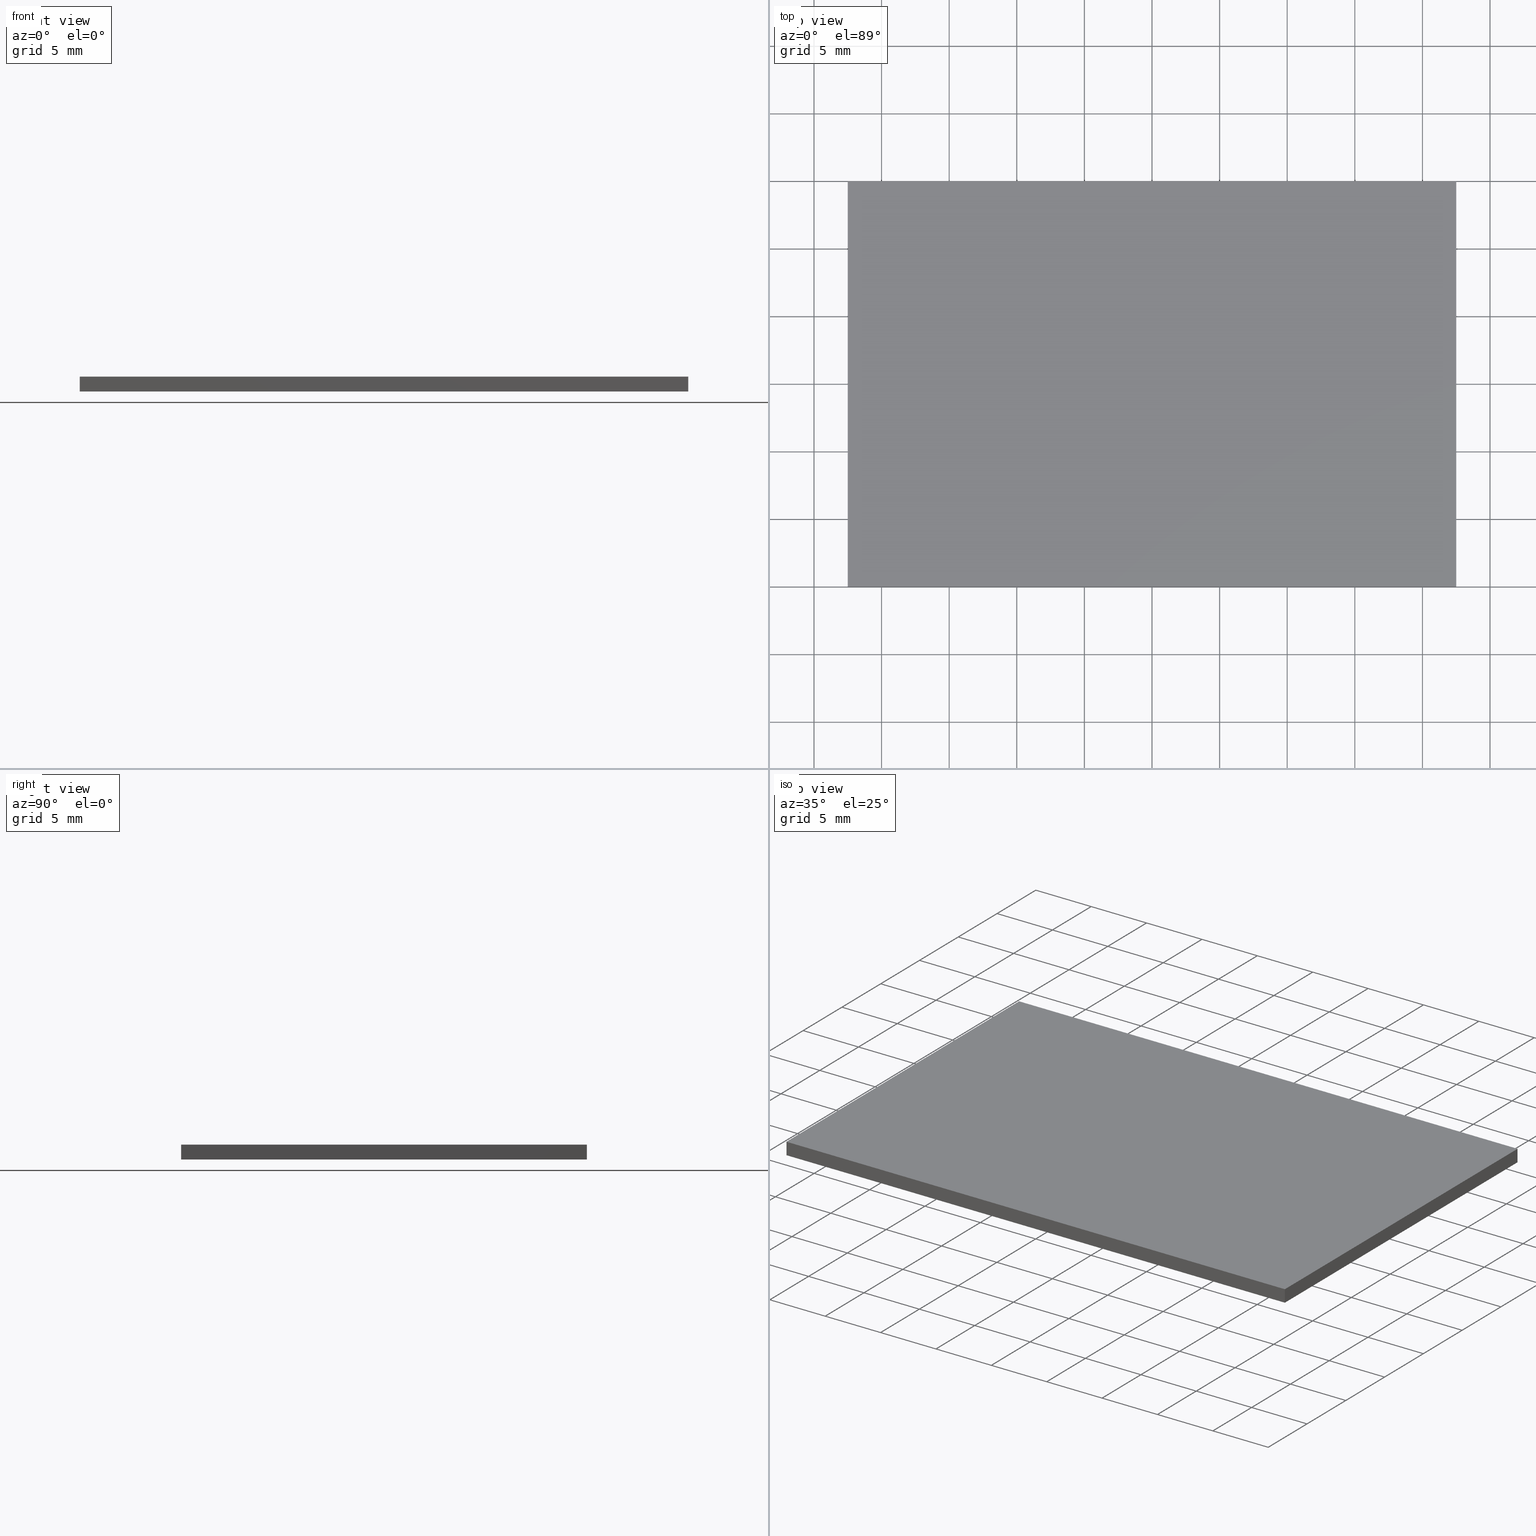
[diagram: canonical four-view strip — front | top / right | iso, engineering-drawing reading convention]
A machine part, canonical four-view strip (front | top / right | iso — engineering-drawing reading convention). The complete STEP part file that produces these views, byte-faithful:
ISO-10303-21;
HEADER;
FILE_DESCRIPTION (( 'STEP AP203' ),
    '1' );
FILE_NAME ('348507.STEP',
    '2019-07-31T07:42:48',
    ( '' ),
    ( '' ),
    'SwSTEP 2.0',
    'SolidWorks 2016',
    '' );
FILE_SCHEMA (( 'CONFIG_CONTROL_DESIGN' ));
ENDSEC;

DATA;
#1 = SECURITY_CLASSIFICATION_LEVEL ( 'unclassified' ) ;
#2 = ORGANIZATION ( 'δָ��', 'δָ��', '' ) ;
#3 = CLOSED_SHELL ( 'NONE', ( #141, #264, #4, #267, #297, #73 ) ) ;
#4 = ADVANCED_FACE ( 'NONE', ( #225 ), #79, .F. ) ;
#5 = LOCAL_TIME ( 15, 42, 48.00000000000000000, #269 ) ;
#6 = DESIGN_CONTEXT ( 'detailed design', #213, 'design' ) ;
#7 = PRODUCT_RELATED_PRODUCT_CATEGORY ( 'detail', '', ( #286 ) ) ;
#8 = SECURITY_CLASSIFICATION ( '', '', #1 ) ;
#9 = LOCAL_TIME ( 15, 42, 48.00000000000000000, #70 ) ;
#10 = EDGE_CURVE ( 'NONE', #270, #159, #53, .T. ) ;
#11 = EDGE_LOOP ( 'NONE', ( #221, #121, #105, #145 ) ) ;
#12 = DIRECTION ( 'NONE',  ( 0.0000000000000000000, 0.0000000000000000000, -1.000000000000000000 ) ) ;
#13 = LINE ( 'NONE', #202, #164 ) ;
#14 = DIRECTION ( 'NONE',  ( -1.000000000000000000, -0.0000000000000000000, -0.0000000000000000000 ) ) ;
#15 = EDGE_CURVE ( 'NONE', #88, #270, #190, .T. ) ;
#16 = ORIENTED_EDGE ( 'NONE', *, *, #15, .F. ) ;
#17 = DIRECTION ( 'NONE',  ( 0.0000000000000000000, -1.000000000000000000, 0.0000000000000000000 ) ) ;
#18 = CC_DESIGN_PERSON_AND_ORGANIZATION_ASSIGNMENT ( #31, #68, ( #182 ) ) ;
#19 = CARTESIAN_POINT ( 'NONE',  ( 22.50000000000000000, -15.00000000000000000, 1.100000000000000100 ) ) ;
#20 = AXIS2_PLACEMENT_3D ( 'NONE', #232, #281, #251 ) ;
#21 = DIRECTION ( 'NONE',  ( -1.000000000000000000, -0.0000000000000000000, -0.0000000000000000000 ) ) ;
#22 = APPROVAL_DATE_TIME ( #143, #169 ) ;
#23 = DATE_TIME_ROLE ( 'creation_date' ) ;
#24 = APPROVAL_ROLE ( '' ) ;
#25 = DIRECTION ( 'NONE',  ( 0.0000000000000000000, 0.0000000000000000000, 1.000000000000000000 ) ) ;
#26 = SECURITY_CLASSIFICATION_LEVEL ( 'unclassified' ) ;
#27 = VERTEX_POINT ( 'NONE', #106 ) ;
#28 = APPLICATION_CONTEXT ( 'configuration controlled 3d designs of mechanical parts and assemblies' ) ;
#29 = VECTOR ( 'NONE', #83, 1000.000000000000000 ) ;
#30 = PRODUCT_DEFINITION ( 'δ֪', '', #268, #250 ) ;
#31 = PERSON_AND_ORGANIZATION ( #288, #2 ) ;
#32 = CALENDAR_DATE ( 2019, 31, 7 ) ;
#33 = DATE_AND_TIME ( #254, #56 ) ;
#34 = EDGE_CURVE ( 'NONE', #154, #270, #274, .T. ) ;
#35 = ORIENTED_EDGE ( 'NONE', *, *, #263, .F. ) ;
#36 = DIRECTION ( 'NONE',  ( -0.0000000000000000000, -0.0000000000000000000, -1.000000000000000000 ) ) ;
#37 = LINE ( 'NONE', #114, #292 ) ;
#38 = CC_DESIGN_PERSON_AND_ORGANIZATION_ASSIGNMENT ( #228, #95, ( #222 ) ) ;
#39 =( NAMED_UNIT ( * ) PLANE_ANGLE_UNIT ( ) SI_UNIT ( $, .RADIAN. ) );
#40 = AXIS2_PLACEMENT_3D ( 'NONE', #54, #150, #107 ) ;
#41 = PLANE ( 'NONE',  #304 ) ;
#42 = APPROVAL_PERSON_ORGANIZATION ( #220, #197, #140 ) ;
#43 = CARTESIAN_POINT ( 'NONE',  ( -22.49999999999999600, 15.00000000000000000, 1.100000000000000100 ) ) ;
#44 = CARTESIAN_POINT ( 'NONE',  ( -22.49999999999999600, 15.00000000000000000, 1.100000000000000100 ) ) ;
#45 = CC_DESIGN_DATE_AND_TIME_ASSIGNMENT ( #146, #69, ( #30 ) ) ;
#46 = APPROVAL_ROLE ( '' ) ;
#47 = APPROVAL_ROLE ( '' ) ;
#48 = LOCAL_TIME ( 15, 42, 48.00000000000000000, #198 ) ;
#49 = APPLICATION_CONTEXT ( 'configuration controlled 3d designs of mechanical parts and assemblies' ) ;
#50 = ORIENTED_EDGE ( 'NONE', *, *, #208, .T. ) ;
#51 = DATE_AND_TIME ( #32, #100 ) ;
#52 = APPROVAL_PERSON_ORGANIZATION ( #242, #223, #24 ) ;
#53 = LINE ( 'NONE', #278, #29 ) ;
#54 = CARTESIAN_POINT ( 'NONE',  ( 22.50000000000000000, -15.00000000000000000, 1.100000000000000100 ) ) ;
#55 = CC_DESIGN_APPROVAL ( #135, ( #268 ) ) ;
#56 = LOCAL_TIME ( 15, 42, 48.00000000000000000, #211 ) ;
#57 = LINE ( 'NONE', #177, #295 ) ;
#58 = EDGE_CURVE ( 'NONE', #27, #159, #200, .T. ) ;
#59 = PERSON_AND_ORGANIZATION ( #288, #2 ) ;
#60 =( NAMED_UNIT ( * ) SI_UNIT ( $, .STERADIAN. ) SOLID_ANGLE_UNIT ( ) );
#61 = SHAPE_DEFINITION_REPRESENTATION ( #214, #259 ) ;
#62 = ORIENTED_EDGE ( 'NONE', *, *, #97, .F. ) ;
#63 = DIRECTION ( 'NONE',  ( 0.0000000000000000000, -0.0000000000000000000, -1.000000000000000000 ) ) ;
#64 = AXIS2_PLACEMENT_3D ( 'NONE', #305, #12, #276 ) ;
#65 = LOCAL_TIME ( 15, 42, 48.00000000000000000, #273 ) ;
#66 = VECTOR ( 'NONE', #203, 1000.000000000000000 ) ;
#67 = APPROVAL_ROLE ( '' ) ;
#68 = PERSON_AND_ORGANIZATION_ROLE ( 'design_owner' ) ;
#69 = DATE_TIME_ROLE ( 'creation_date' ) ;
#70 = COORDINATED_UNIVERSAL_TIME_OFFSET ( 8, 0, .AHEAD. ) ;
#71 = FACE_OUTER_BOUND ( 'NONE', #74, .T. ) ;
#72 = PERSON_AND_ORGANIZATION_ROLE ( 'design_owner' ) ;
#73 = ADVANCED_FACE ( 'NONE', ( #71 ), #86, .T. ) ;
#74 = EDGE_LOOP ( 'NONE', ( #217, #62, #239, #16 ) ) ;
#75 = SECURITY_CLASSIFICATION ( '', '', #26 ) ;
#76 = AXIS2_PLACEMENT_3D ( 'NONE', #128, #25, #116 ) ;
#77 = DATE_AND_TIME ( #138, #48 ) ;
#78 = ORIENTED_EDGE ( 'NONE', *, *, #144, .T. ) ;
#79 = PLANE ( 'NONE',  #187 ) ;
#80 = CC_DESIGN_PERSON_AND_ORGANIZATION_ASSIGNMENT ( #302, #72, ( #286 ) ) ;
#81 = DATE_AND_TIME ( #120, #284 ) ;
#82 = APPROVAL_PERSON_ORGANIZATION ( #224, #218, #46 ) ;
#83 = DIRECTION ( 'NONE',  ( -0.0000000000000000000, -1.000000000000000000, -0.0000000000000000000 ) ) ;
#84 = VECTOR ( 'NONE', #306, 1000.000000000000000 ) ;
#85 = CARTESIAN_POINT ( 'NONE',  ( -22.49999999999999600, 15.00000000000000000, 0.0000000000000000000 ) ) ;
#86 = PLANE ( 'NONE',  #64 ) ;
#87 = APPROVAL_PERSON_ORGANIZATION ( #163, #135, #118 ) ;
#88 = VERTEX_POINT ( 'NONE', #271 ) ;
#89 = CC_DESIGN_DATE_AND_TIME_ASSIGNMENT ( #51, #260, ( #8 ) ) ;
#90 = DIRECTION ( 'NONE',  ( -0.0000000000000000000, -1.000000000000000000, -0.0000000000000000000 ) ) ;
#91 = CALENDAR_DATE ( 2019, 31, 7 ) ;
#92 = LINE ( 'NONE', #158, #266 ) ;
#93 = CARTESIAN_POINT ( 'NONE',  ( -22.49999999999999600, -15.00000000000000000, 1.100000000000000100 ) ) ;
#94 = CC_DESIGN_APPROVAL ( #218, ( #75 ) ) ;
#95 = PERSON_AND_ORGANIZATION_ROLE ( 'creator' ) ;
#96 = PERSON_AND_ORGANIZATION_ROLE ( 'creator' ) ;
#97 = EDGE_CURVE ( 'NONE', #159, #303, #125, .T. ) ;
#98 = VECTOR ( 'NONE', #14, 1000.000000000000000 ) ;
#99 = APPLICATION_PROTOCOL_DEFINITION ( 'international standard', 'config_control_design', 1994, #28 ) ;
#100 = LOCAL_TIME ( 15, 42, 48.00000000000000000, #166 ) ;
#101 = ORIENTED_EDGE ( 'NONE', *, *, #192, .T. ) ;
#102 = DATE_AND_TIME ( #117, #65 ) ;
#103 = CC_DESIGN_PERSON_AND_ORGANIZATION_ASSIGNMENT ( #59, #209, ( #222 ) ) ;
#104 = DATE_AND_TIME ( #204, #241 ) ;
#105 = ORIENTED_EDGE ( 'NONE', *, *, #161, .T. ) ;
#106 = CARTESIAN_POINT ( 'NONE',  ( -22.49999999999999600, -15.00000000000000000, 1.100000000000000100 ) ) ;
#107 = DIRECTION ( 'NONE',  ( 0.0000000000000000000, 0.0000000000000000000, 1.000000000000000000 ) ) ;
#108 = CALENDAR_DATE ( 2019, 31, 7 ) ;
#109 = LINE ( 'NONE', #130, #66 ) ;
#110 = PRODUCT_DEFINITION_SHAPE ( 'NONE', 'NONE',  #30 ) ;
#111 = CARTESIAN_POINT ( 'NONE',  ( 0.0000000000000000000, 0.0000000000000000000, 0.0000000000000000000 ) ) ;
#112 = CARTESIAN_POINT ( 'NONE',  ( -22.49999999999999600, 15.00000000000000000, 1.100000000000000100 ) ) ;
#113 = ORIENTED_EDGE ( 'NONE', *, *, #34, .F. ) ;
#114 = CARTESIAN_POINT ( 'NONE',  ( -22.49999999999999600, -15.00000000000000000, 1.100000000000000100 ) ) ;
#115 = CC_DESIGN_DATE_AND_TIME_ASSIGNMENT ( #193, #210, ( #75 ) ) ;
#116 = DIRECTION ( 'NONE',  ( 1.000000000000000000, 0.0000000000000000000, 0.0000000000000000000 ) ) ;
#117 = CALENDAR_DATE ( 2019, 31, 7 ) ;
#118 = APPROVAL_ROLE ( '' ) ;
#119 = APPROVAL_STATUS ( 'not_yet_approved' ) ;
#120 = CALENDAR_DATE ( 2019, 31, 7 ) ;
#121 = ORIENTED_EDGE ( 'NONE', *, *, #263, .T. ) ;
#122 = CC_DESIGN_SECURITY_CLASSIFICATION ( #75, ( #268 ) ) ;
#123 = FACE_OUTER_BOUND ( 'NONE', #287, .T. ) ;
#124 = DATE_AND_TIME ( #91, #148 ) ;
#125 = LINE ( 'NONE', #277, #133 ) ;
#126 = CARTESIAN_POINT ( 'NONE',  ( -22.49999999999999600, -15.00000000000000000, 1.100000000000000100 ) ) ;
#127 = APPROVAL_PERSON_ORGANIZATION ( #285, #169, #47 ) ;
#128 = CARTESIAN_POINT ( 'NONE',  ( 0.0000000000000000000, 0.0000000000000000000, 0.0000000000000000000 ) ) ;
#129 = VERTEX_POINT ( 'NONE', #176 ) ;
#130 = CARTESIAN_POINT ( 'NONE',  ( 22.50000000000000000, -15.00000000000000000, 1.100000000000000100 ) ) ;
#131 = COORDINATED_UNIVERSAL_TIME_OFFSET ( 8, 0, .AHEAD. ) ;
#132 = COORDINATED_UNIVERSAL_TIME_OFFSET ( 8, 0, .AHEAD. ) ;
#133 = VECTOR ( 'NONE', #173, 1000.000000000000000 ) ;
#134 = PERSON_AND_ORGANIZATION_ROLE ( 'creator' ) ;
#135 = APPROVAL ( #162, 'δָ��' ) ;
#136 = MECHANICAL_CONTEXT ( 'NONE', #28, 'mechanical' ) ;
#137 = APPLICATION_PROTOCOL_DEFINITION ( 'international standard', 'config_control_design', 1994, #49 ) ;
#138 = CALENDAR_DATE ( 2019, 31, 7 ) ;
#139 = ORIENTED_EDGE ( 'NONE', *, *, #58, .T. ) ;
#140 = APPROVAL_ROLE ( '' ) ;
#141 = ADVANCED_FACE ( 'NONE', ( #180 ), #147, .F. ) ;
#142 = COORDINATED_UNIVERSAL_TIME_OFFSET ( 8, 0, .AHEAD. ) ;
#143 = DATE_AND_TIME ( #248, #9 ) ;
#144 = EDGE_CURVE ( 'NONE', #303, #88, #92, .T. ) ;
#145 = ORIENTED_EDGE ( 'NONE', *, *, #298, .T. ) ;
#146 = DATE_AND_TIME ( #175, #246 ) ;
#147 = PLANE ( 'NONE',  #40 ) ;
#148 = LOCAL_TIME ( 15, 42, 48.00000000000000000, #131 ) ;
#149 = EDGE_LOOP ( 'NONE', ( #78, #309, #194, #50 ) ) ;
#150 = DIRECTION ( 'NONE',  ( -1.000000000000000000, 0.0000000000000000000, 0.0000000000000000000 ) ) ;
#151 = CC_DESIGN_PERSON_AND_ORGANIZATION_ASSIGNMENT ( #205, #134, ( #268 ) ) ;
#152 = CARTESIAN_POINT ( 'NONE',  ( -22.49999999999999600, -15.00000000000000000, 1.100000000000000100 ) ) ;
#153 = APPROVAL_DATE_TIME ( #33, #223 ) ;
#154 = VERTEX_POINT ( 'NONE', #43 ) ;
#155 = DIRECTION ( 'NONE',  ( 0.0000000000000000000, 1.000000000000000000, 0.0000000000000000000 ) ) ;
#156 =( LENGTH_UNIT ( ) NAMED_UNIT ( * ) SI_UNIT ( .MILLI., .METRE. ) );
#157 = PERSON_AND_ORGANIZATION ( #288, #2 ) ;
#158 = CARTESIAN_POINT ( 'NONE',  ( 22.50000000000000000, -15.00000000000000000, 0.0000000000000000000 ) ) ;
#159 = VERTEX_POINT ( 'NONE', #307 ) ;
#160 = PRODUCT_DEFINITION ( 'δ֪', '', #222, #6 ) ;
#161 = EDGE_CURVE ( 'NONE', #154, #27, #37, .T. ) ;
#162 = APPROVAL_STATUS ( 'not_yet_approved' ) ;
#163 = PERSON_AND_ORGANIZATION ( #288, #2 ) ;
#164 = VECTOR ( 'NONE', #201, 1000.000000000000000 ) ;
#165 = PERSON_AND_ORGANIZATION_ROLE ( 'classification_officer' ) ;
#166 = COORDINATED_UNIVERSAL_TIME_OFFSET ( 8, 0, .AHEAD. ) ;
#167 = VECTOR ( 'NONE', #21, 1000.000000000000000 ) ;
#168 = VERTEX_POINT ( 'NONE', #199 ) ;
#169 = APPROVAL ( #185, 'δָ��' ) ;
#170 = PERSON_AND_ORGANIZATION ( #288, #2 ) ;
#171 = LINE ( 'NONE', #112, #167 ) ;
#172 = ORIENTED_EDGE ( 'NONE', *, *, #10, .T. ) ;
#173 = DIRECTION ( 'NONE',  ( 1.000000000000000000, 0.0000000000000000000, 0.0000000000000000000 ) ) ;
#174 = CARTESIAN_POINT ( 'NONE',  ( -22.49999999999999600, 15.00000000000000000, 1.100000000000000100 ) ) ;
#175 = CALENDAR_DATE ( 2019, 31, 7 ) ;
#176 = CARTESIAN_POINT ( 'NONE',  ( 22.50000000000000000, -15.00000000000000000, 1.100000000000000100 ) ) ;
#177 = CARTESIAN_POINT ( 'NONE',  ( -22.49999999999999600, -15.00000000000000000, 1.100000000000000100 ) ) ;
#178 = APPROVAL_DATE_TIME ( #104, #197 ) ;
#179 = MANIFOLD_SOLID_BREP ( '͹̨-����1', #3 ) ;
#180 = FACE_OUTER_BOUND ( 'NONE', #149, .T. ) ;
#181 = PLANE ( 'NONE',  #236 ) ;
#182 = PRODUCT ( '348507', '348507', '', ( #136 ) ) ;
#183 = CC_DESIGN_DATE_AND_TIME_ASSIGNMENT ( #81, #23, ( #160 ) ) ;
#184 = APPLICATION_PROTOCOL_DEFINITION ( 'international standard', 'config_control_design', 1994, #213 ) ;
#185 = APPROVAL_STATUS ( 'not_yet_approved' ) ;
#186 = APPROVAL_STATUS ( 'not_yet_approved' ) ;
#187 = AXIS2_PLACEMENT_3D ( 'NONE', #126, #245, #195 ) ;
#188 = PERSON_AND_ORGANIZATION ( #288, #2 ) ;
#189 = FACE_OUTER_BOUND ( 'NONE', #243, .T. ) ;
#190 = LINE ( 'NONE', #85, #98 ) ;
#191 = CC_DESIGN_APPROVAL ( #169, ( #160 ) ) ;
#192 = EDGE_CURVE ( 'NONE', #168, #88, #13, .T. ) ;
#193 = DATE_AND_TIME ( #108, #5 ) ;
#194 = ORIENTED_EDGE ( 'NONE', *, *, #215, .F. ) ;
#195 = DIRECTION ( 'NONE',  ( 0.0000000000000000000, 0.0000000000000000000, -1.000000000000000000 ) ) ;
#196 = PERSON_AND_ORGANIZATION ( #288, #2 ) ;
#197 = APPROVAL ( #294, 'δָ��' ) ;
#198 = COORDINATED_UNIVERSAL_TIME_OFFSET ( 8, 0, .AHEAD. ) ;
#199 = CARTESIAN_POINT ( 'NONE',  ( 22.50000000000000000, 15.00000000000000000, 1.100000000000000100 ) ) ;
#200 = LINE ( 'NONE', #152, #84 ) ;
#201 = DIRECTION ( 'NONE',  ( -0.0000000000000000000, -0.0000000000000000000, -1.000000000000000000 ) ) ;
#202 = CARTESIAN_POINT ( 'NONE',  ( 22.50000000000000000, 15.00000000000000000, 1.100000000000000100 ) ) ;
#203 = DIRECTION ( 'NONE',  ( -0.0000000000000000000, -0.0000000000000000000, -1.000000000000000000 ) ) ;
#204 = CALENDAR_DATE ( 2019, 31, 7 ) ;
#205 = PERSON_AND_ORGANIZATION ( #288, #2 ) ;
#206 = ORIENTED_EDGE ( 'NONE', *, *, #298, .F. ) ;
#207 = DIRECTION ( 'NONE',  ( 0.0000000000000000000, -0.0000000000000000000, 1.000000000000000000 ) ) ;
#208 = EDGE_CURVE ( 'NONE', #129, #303, #109, .T. ) ;
#209 = PERSON_AND_ORGANIZATION_ROLE ( 'design_supplier' ) ;
#210 = DATE_TIME_ROLE ( 'classification_date' ) ;
#211 = COORDINATED_UNIVERSAL_TIME_OFFSET ( 8, 0, .AHEAD. ) ;
#212 = ORIENTED_EDGE ( 'NONE', *, *, #97, .T. ) ;
#213 = APPLICATION_CONTEXT ( 'configuration controlled 3d designs of mechanical parts and assemblies' ) ;
#214 = PRODUCT_DEFINITION_SHAPE ( 'NONE', 'NONE',  #160 ) ;
#215 = EDGE_CURVE ( 'NONE', #129, #168, #279, .T. ) ;
#216 = APPROVAL_PERSON_ORGANIZATION ( #196, #240, #67 ) ;
#217 = ORIENTED_EDGE ( 'NONE', *, *, #144, .F. ) ;
#218 = APPROVAL ( #119, 'δָ��' ) ;
#219 = ORIENTED_EDGE ( 'NONE', *, *, #208, .F. ) ;
#220 = PERSON_AND_ORGANIZATION ( #288, #2 ) ;
#221 = ORIENTED_EDGE ( 'NONE', *, *, #215, .T. ) ;
#222 = PRODUCT_DEFINITION_FORMATION_WITH_SPECIFIED_SOURCE ( '�κ�', '', #182, .NOT_KNOWN. ) ;
#223 = APPROVAL ( #237, 'δָ��' ) ;
#224 = PERSON_AND_ORGANIZATION ( #288, #2 ) ;
#225 = FACE_OUTER_BOUND ( 'NONE', #280, .T. ) ;
#226 = DIRECTION ( 'NONE',  ( 1.000000000000000000, 0.0000000000000000000, 0.0000000000000000000 ) ) ;
#227 = CC_DESIGN_PERSON_AND_ORGANIZATION_ASSIGNMENT ( #170, #289, ( #75 ) ) ;
#228 = PERSON_AND_ORGANIZATION ( #288, #2 ) ;
#229 = DIRECTION ( 'NONE',  ( 0.0000000000000000000, 1.000000000000000000, 0.0000000000000000000 ) ) ;
#230 = ORIENTED_EDGE ( 'NONE', *, *, #58, .F. ) ;
#231 = CARTESIAN_POINT ( 'NONE',  ( -22.49999999999999600, 15.00000000000000000, 0.0000000000000000000 ) ) ;
#232 = CARTESIAN_POINT ( 'NONE',  ( 0.0000000000000000000, 0.0000000000000000000, 1.100000000000000100 ) ) ;
#233 = DIRECTION ( 'NONE',  ( 1.000000000000000000, 0.0000000000000000000, 0.0000000000000000000 ) ) ;
#234 = PRODUCT_RELATED_PRODUCT_CATEGORY ( 'detail', '', ( #182 ) ) ;
#235 = APPROVAL_DATE_TIME ( #102, #135 ) ;
#236 = AXIS2_PLACEMENT_3D ( 'NONE', #93, #229, #207 ) ;
#237 = APPROVAL_STATUS ( 'not_yet_approved' ) ;
#238 = VECTOR ( 'NONE', #155, 1000.000000000000000 ) ;
#239 = ORIENTED_EDGE ( 'NONE', *, *, #10, .F. ) ;
#240 = APPROVAL ( #186, 'δָ��' ) ;
#241 = LOCAL_TIME ( 15, 42, 48.00000000000000000, #142 ) ;
#242 = PERSON_AND_ORGANIZATION ( #288, #2 ) ;
#243 = EDGE_LOOP ( 'NONE', ( #261, #113, #35, #101 ) ) ;
#244 = CC_DESIGN_APPROVAL ( #197, ( #222 ) ) ;
#245 = DIRECTION ( 'NONE',  ( 1.000000000000000000, 0.0000000000000000000, 0.0000000000000000000 ) ) ;
#246 = LOCAL_TIME ( 15, 42, 48.00000000000000000, #313 ) ;
#247 =( GEOMETRIC_REPRESENTATION_CONTEXT ( 3 ) GLOBAL_UNCERTAINTY_ASSIGNED_CONTEXT ( ( #300 ) ) GLOBAL_UNIT_ASSIGNED_CONTEXT ( ( #156, #39, #60 ) ) REPRESENTATION_CONTEXT ( 'NONE', 'WORKASPACE' ) );
#248 = CALENDAR_DATE ( 2019, 31, 7 ) ;
#249 = VECTOR ( 'NONE', #36, 1000.000000000000000 ) ;
#250 = DESIGN_CONTEXT ( 'detailed design', #311, 'design' ) ;
#251 = DIRECTION ( 'NONE',  ( -1.000000000000000000, 0.0000000000000000000, -0.0000000000000000000 ) ) ;
#252 = CC_DESIGN_SECURITY_CLASSIFICATION ( #8, ( #222 ) ) ;
#253 = CARTESIAN_POINT ( 'NONE',  ( 22.50000000000000000, -15.00000000000000000, 0.0000000000000000000 ) ) ;
#254 = CALENDAR_DATE ( 2019, 31, 7 ) ;
#255 = CC_DESIGN_APPROVAL ( #223, ( #30 ) ) ;
#256 = ORIENTED_EDGE ( 'NONE', *, *, #161, .F. ) ;
#257 = DIRECTION ( 'NONE',  ( 0.0000000000000000000, 0.0000000000000000000, 1.000000000000000000 ) ) ;
#258 = APPROVAL_DATE_TIME ( #77, #218 ) ;
#259 = ADVANCED_BREP_SHAPE_REPRESENTATION ( '348507', ( #179, #308 ), #247 ) ;
#260 = DATE_TIME_ROLE ( 'classification_date' ) ;
#261 = ORIENTED_EDGE ( 'NONE', *, *, #15, .T. ) ;
#262 = CC_DESIGN_APPROVAL ( #240, ( #8 ) ) ;
#263 = EDGE_CURVE ( 'NONE', #168, #154, #171, .T. ) ;
#264 = ADVANCED_FACE ( 'NONE', ( #189 ), #41, .F. ) ;
#265 = PERSON_AND_ORGANIZATION ( #288, #2 ) ;
#266 = VECTOR ( 'NONE', #282, 1000.000000000000000 ) ;
#267 = ADVANCED_FACE ( 'NONE', ( #123 ), #181, .F. ) ;
#268 = PRODUCT_DEFINITION_FORMATION_WITH_SPECIFIED_SOURCE ( '�κ�', '', #286, .NOT_KNOWN. ) ;
#269 = COORDINATED_UNIVERSAL_TIME_OFFSET ( 8, 0, .AHEAD. ) ;
#270 = VERTEX_POINT ( 'NONE', #231 ) ;
#271 = CARTESIAN_POINT ( 'NONE',  ( 22.50000000000000000, 15.00000000000000000, 0.0000000000000000000 ) ) ;
#272 = APPROVAL_DATE_TIME ( #124, #240 ) ;
#273 = COORDINATED_UNIVERSAL_TIME_OFFSET ( 8, 0, .AHEAD. ) ;
#274 = LINE ( 'NONE', #174, #249 ) ;
#275 = CC_DESIGN_PERSON_AND_ORGANIZATION_ASSIGNMENT ( #157, #165, ( #8 ) ) ;
#276 = DIRECTION ( 'NONE',  ( -1.000000000000000000, 0.0000000000000000000, -0.0000000000000000000 ) ) ;
#277 = CARTESIAN_POINT ( 'NONE',  ( -22.49999999999999600, -15.00000000000000000, 0.0000000000000000000 ) ) ;
#278 = CARTESIAN_POINT ( 'NONE',  ( -22.49999999999999600, -15.00000000000000000, 0.0000000000000000000 ) ) ;
#279 = LINE ( 'NONE', #19, #238 ) ;
#280 = EDGE_LOOP ( 'NONE', ( #172, #230, #256, #296 ) ) ;
#281 = DIRECTION ( 'NONE',  ( 0.0000000000000000000, 0.0000000000000000000, -1.000000000000000000 ) ) ;
#282 = DIRECTION ( 'NONE',  ( 0.0000000000000000000, 1.000000000000000000, 0.0000000000000000000 ) ) ;
#283 = CC_DESIGN_PERSON_AND_ORGANIZATION_ASSIGNMENT ( #265, #293, ( #160 ) ) ;
#284 = LOCAL_TIME ( 15, 42, 48.00000000000000000, #132 ) ;
#285 = PERSON_AND_ORGANIZATION ( #288, #2 ) ;
#286 = PRODUCT ( '348507', '348507', '', ( #290 ) ) ;
#287 = EDGE_LOOP ( 'NONE', ( #212, #219, #206, #139 ) ) ;
#288 = PERSON ( 'δָ��', 'δָ��', 'δָ��', ('δָ��'), ('δָ��'), ('δָ��') ) ;
#289 = PERSON_AND_ORGANIZATION_ROLE ( 'classification_officer' ) ;
#290 = MECHANICAL_CONTEXT ( 'NONE', #49, 'mechanical' ) ;
#291 = FACE_OUTER_BOUND ( 'NONE', #11, .T. ) ;
#292 = VECTOR ( 'NONE', #90, 1000.000000000000000 ) ;
#293 = PERSON_AND_ORGANIZATION_ROLE ( 'creator' ) ;
#294 = APPROVAL_STATUS ( 'not_yet_approved' ) ;
#295 = VECTOR ( 'NONE', #226, 1000.000000000000000 ) ;
#296 = ORIENTED_EDGE ( 'NONE', *, *, #34, .T. ) ;
#297 = ADVANCED_FACE ( 'NONE', ( #291 ), #310, .F. ) ;
#298 = EDGE_CURVE ( 'NONE', #27, #129, #57, .T. ) ;
#299 = PERSON_AND_ORGANIZATION ( #288, #2 ) ;
#300 = UNCERTAINTY_MEASURE_WITH_UNIT (LENGTH_MEASURE( 1.000000000000000100E-005 ), #156, 'distance_accuracy_value', 'NONE');
#301 = CC_DESIGN_PERSON_AND_ORGANIZATION_ASSIGNMENT ( #188, #314, ( #268 ) ) ;
#302 = PERSON_AND_ORGANIZATION ( #288, #2 ) ;
#303 = VERTEX_POINT ( 'NONE', #253 ) ;
#304 = AXIS2_PLACEMENT_3D ( 'NONE', #44, #17, #63 ) ;
#305 = CARTESIAN_POINT ( 'NONE',  ( 0.0000000000000000000, 0.0000000000000000000, 0.0000000000000000000 ) ) ;
#306 = DIRECTION ( 'NONE',  ( -0.0000000000000000000, -0.0000000000000000000, -1.000000000000000000 ) ) ;
#307 = CARTESIAN_POINT ( 'NONE',  ( -22.49999999999999600, -15.00000000000000000, 0.0000000000000000000 ) ) ;
#308 = AXIS2_PLACEMENT_3D ( 'NONE', #111, #257, #233 ) ;
#309 = ORIENTED_EDGE ( 'NONE', *, *, #192, .F. ) ;
#310 = PLANE ( 'NONE',  #20 ) ;
#311 = APPLICATION_CONTEXT ( 'configuration controlled 3d designs of mechanical parts and assemblies' ) ;
#312 = CC_DESIGN_PERSON_AND_ORGANIZATION_ASSIGNMENT ( #299, #96, ( #30 ) ) ;
#313 = COORDINATED_UNIVERSAL_TIME_OFFSET ( 8, 0, .AHEAD. ) ;
#314 = PERSON_AND_ORGANIZATION_ROLE ( 'design_supplier' ) ;
#315 = APPLICATION_PROTOCOL_DEFINITION ( 'international standard', 'config_control_design', 1994, #311 ) ;
ENDSEC;
END-ISO-10303-21;
